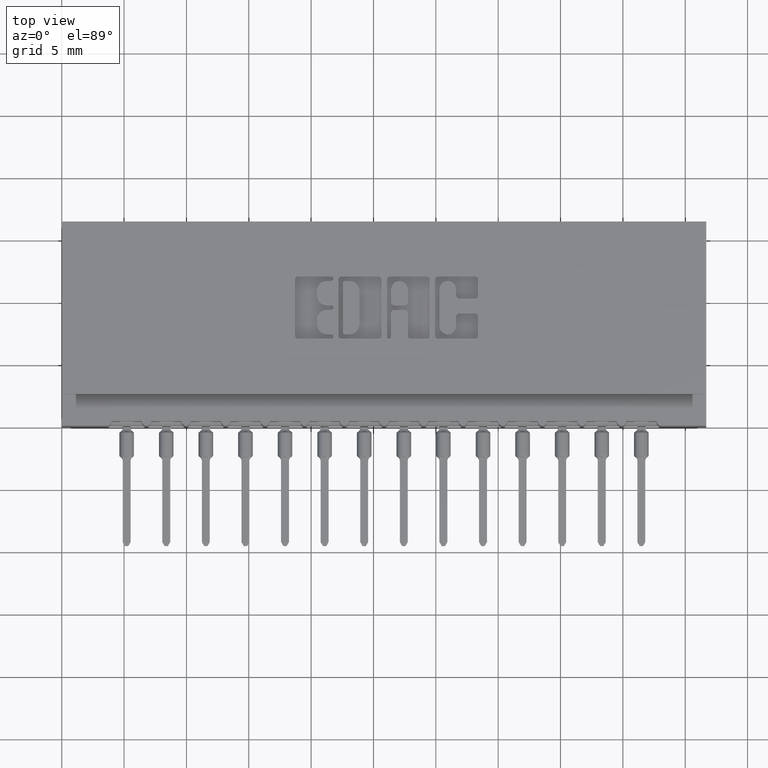
[diagram: clean part render]
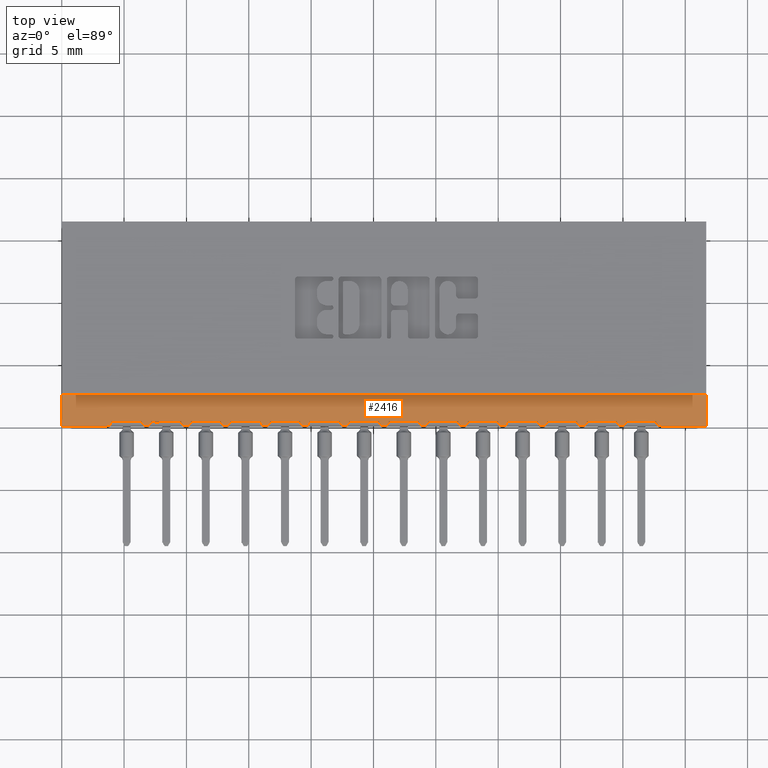
[diagram: same view with one face highlighted and labeled with its STEP entity id]
A machine part, top view. The second image highlights one B-rep face of the part: STEP entity #2416.
In plain terms, the highlighted planar face has unit normal (0, 0, -1).
Its self-contained STEP definition (entity closure, byte-faithful):
#82 = VERTEX_POINT ( 'NONE', #15864 ) ;
#85 = LINE ( 'NONE', #7974, #16011 ) ;
#154 = CARTESIAN_POINT ( 'NONE',  ( 2.035000000000000142, 0.0000000000000000000, -0.02500000000000000486 ) ) ;
#219 = VERTEX_POINT ( 'NONE', #16225 ) ;
#354 = ORIENTED_EDGE ( 'NONE', *, *, #18054, .T. ) ;
#429 = CARTESIAN_POINT ( 'NONE',  ( 1.808999999999999719, 0.01499999999999999424, -0.02500000000000003608 ) ) ;
#559 = DIRECTION ( 'NONE',  ( 1.000000000000000000, -0.0000000000000000000, -2.307304048702925122E-16 ) ) ;
#734 = CARTESIAN_POINT ( 'NONE',  ( 0.1424999999999997102, 0.0000000000000000000, -0.02500000000000000486 ) ) ;
#761 = DIRECTION ( 'NONE',  ( 1.000000000000000000, 0.0000000000000000000, 0.0000000000000000000 ) ) ;
#844 = EDGE_CURVE ( 'NONE', #20589, #3633, #22038, .T. ) ;
#1009 = CIRCLE ( 'NONE', #15615, 0.01499999999999997689 ) ;
#1082 = ORIENTED_EDGE ( 'NONE', *, *, #18582, .T. ) ;
#1389 = ORIENTED_EDGE ( 'NONE', *, *, #2520, .T. ) ;
#1536 = EDGE_CURVE ( 'NONE', #16922, #14521, #9509, .T. ) ;
#1668 = EDGE_CURVE ( 'NONE', #4812, #3667, #85, .T. ) ;
#1925 = CARTESIAN_POINT ( 'NONE',  ( 0.1839999999999996916, 0.01499999999999999424, -0.02500000000000003608 ) ) ;
#2029 = EDGE_CURVE ( 'NONE', #22804, #4812, #1009, .T. ) ;
#2153 = ORIENTED_EDGE ( 'NONE', *, *, #9712, .T. ) ;
#2223 = CARTESIAN_POINT ( 'NONE',  ( 2.035000000000000142, 0.0000000000000000000, -0.02500000000000000486 ) ) ;
#2237 = DIRECTION ( 'NONE',  ( -0.0000000000000000000, 0.0000000000000000000, 1.000000000000000000 ) ) ;
#2247 = VERTEX_POINT ( 'NONE', #14504 ) ;
#2270 = CARTESIAN_POINT ( 'NONE',  ( 0.1574999999999997236, 0.01499999999999997169, -0.02500000000000000486 ) ) ;
#2334 = AXIS2_PLACEMENT_3D ( 'NONE', #7101, #19962, #6251 ) ;
#2393 = VERTEX_POINT ( 'NONE', #7292 ) ;
#2416 = ADVANCED_FACE ( 'NONE', ( #5393 ), #20893, .F. ) ;
#2465 = EDGE_CURVE ( 'NONE', #21553, #13760, #10756, .T. ) ;
#2520 = EDGE_CURVE ( 'NONE', #2393, #20589, #13992, .T. ) ;
#2619 = CARTESIAN_POINT ( 'NONE',  ( 1.752499999999999503, 0.01499999999999997169, -0.02500000000000000486 ) ) ;
#2662 = EDGE_CURVE ( 'NONE', #10345, #11675, #9584, .T. ) ;
#2693 = ORIENTED_EDGE ( 'NONE', *, *, #13655, .T. ) ;
#2907 = VECTOR ( 'NONE', #3696, 39.37007874015748143 ) ;
#3059 = LINE ( 'NONE', #8644, #10998 ) ;
#3185 = CARTESIAN_POINT ( 'NONE',  ( 1.142499999999999627, 0.01499999999999997169, -0.02500000000000000486 ) ) ;
#3318 = LINE ( 'NONE', #22761, #22798 ) ;
#3439 = CARTESIAN_POINT ( 'NONE',  ( 1.308999999999999941, 0.01499999999999999424, -0.02500000000000003608 ) ) ;
#3507 = ORIENTED_EDGE ( 'NONE', *, *, #16495, .T. ) ;
#3562 = DIRECTION ( 'NONE',  ( 1.000000000000000000, 0.0000000000000000000, 0.0000000000000000000 ) ) ;
#3624 = DIRECTION ( 'NONE',  ( 1.000000000000000000, 0.0000000000000000000, 0.0000000000000000000 ) ) ;
#3633 = VERTEX_POINT ( 'NONE', #18994 ) ;
#3652 = VERTEX_POINT ( 'NONE', #20637 ) ;
#3667 = VERTEX_POINT ( 'NONE', #24189 ) ;
#3696 = DIRECTION ( 'NONE',  ( 1.000000000000000000, -0.0000000000000000000, -2.307304048702925122E-16 ) ) ;
#3707 = CARTESIAN_POINT ( 'NONE',  ( 0.9074999999999996403, 0.01499999999999997169, -0.02500000000000000486 ) ) ;
#3788 = VERTEX_POINT ( 'NONE', #7783 ) ;
#3892 = DIRECTION ( 'NONE',  ( 1.000000000000000000, 0.0000000000000000000, 0.0000000000000000000 ) ) ;
#3901 = AXIS2_PLACEMENT_3D ( 'NONE', #16809, #7029, #14769 ) ;
#3944 = AXIS2_PLACEMENT_3D ( 'NONE', #13559, #6190, #19540 ) ;
#4008 = CARTESIAN_POINT ( 'NONE',  ( 1.767499999999999627, 0.01499999999999997169, -0.02500000000000000486 ) ) ;
#4086 = VERTEX_POINT ( 'NONE', #10667 ) ;
#4199 = VECTOR ( 'NONE', #13746, 39.37007874015748143 ) ;
#4233 = CARTESIAN_POINT ( 'NONE',  ( 0.5589999999999997193, 0.01499999999999999424, -0.02500000000000003608 ) ) ;
#4393 = CIRCLE ( 'NONE', #6807, 0.01499999999999997689 ) ;
#4451 = DIRECTION ( 'NONE',  ( -0.0000000000000000000, 0.0000000000000000000, 1.000000000000000000 ) ) ;
#4659 = CARTESIAN_POINT ( 'NONE',  ( 1.392499999999999627, 0.01499999999999997169, -0.02500000000000000486 ) ) ;
#4782 = DIRECTION ( 'NONE',  ( -0.0000000000000000000, 0.0000000000000000000, 1.000000000000000000 ) ) ;
#4812 = VERTEX_POINT ( 'NONE', #20035 ) ;
#5075 = ORIENTED_EDGE ( 'NONE', *, *, #2662, .F. ) ;
#5145 = DIRECTION ( 'NONE',  ( -0.0000000000000000000, 0.0000000000000000000, 1.000000000000000000 ) ) ;
#5201 = EDGE_CURVE ( 'NONE', #14521, #10589, #9334, .T. ) ;
#5393 = FACE_OUTER_BOUND ( 'NONE', #9731, .T. ) ;
#5466 = DIRECTION ( 'NONE',  ( -0.0000000000000000000, 0.0000000000000000000, 1.000000000000000000 ) ) ;
#5558 = CARTESIAN_POINT ( 'NONE',  ( 1.407499999999999751, 0.01499999999999997169, -0.02500000000000000486 ) ) ;
#5787 = DIRECTION ( 'NONE',  ( -0.0000000000000000000, 0.0000000000000000000, 1.000000000000000000 ) ) ;
#5838 = CARTESIAN_POINT ( 'NONE',  ( 1.252499999999999503, 0.01499999999999997169, -0.02500000000000000486 ) ) ;
#6128 = DIRECTION ( 'NONE',  ( 1.000000000000000000, 0.0000000000000000000, 0.0000000000000000000 ) ) ;
#6129 = LINE ( 'NONE', #4233, #19892 ) ;
#6190 = DIRECTION ( 'NONE',  ( -0.0000000000000000000, 0.0000000000000000000, 1.000000000000000000 ) ) ;
#6251 = DIRECTION ( 'NONE',  ( 1.000000000000000000, 0.0000000000000000000, 0.0000000000000000000 ) ) ;
#6302 = CARTESIAN_POINT ( 'NONE',  ( 1.642499999999999849, 0.01499999999999997169, -0.02500000000000000486 ) ) ;
#6329 = ORIENTED_EDGE ( 'NONE', *, *, #8656, .T. ) ;
#6573 = ORIENTED_EDGE ( 'NONE', *, *, #21549, .T. ) ;
#6580 = CIRCLE ( 'NONE', #15530, 0.01499999999999997689 ) ;
#6594 = CARTESIAN_POINT ( 'NONE',  ( 0.2674999999999996825, 0.01499999999999997169, -0.02500000000000000486 ) ) ;
#6664 = AXIS2_PLACEMENT_3D ( 'NONE', #4659, #4782, #20269 ) ;
#6807 = AXIS2_PLACEMENT_3D ( 'NONE', #9203, #5145, #3624 ) ;
#6953 = VERTEX_POINT ( 'NONE', #5838 ) ;
#6976 = AXIS2_PLACEMENT_3D ( 'NONE', #3185, #12706, #20469 ) ;
#7029 = DIRECTION ( 'NONE',  ( 0.0000000000000000000, 0.0000000000000000000, -1.000000000000000000 ) ) ;
#7101 = CARTESIAN_POINT ( 'NONE',  ( 0.8924999999999997380, 0.01499999999999997169, -0.02500000000000000486 ) ) ;
#7292 = CARTESIAN_POINT ( 'NONE',  ( 1.657499999999999529, 0.01499999999999997169, -0.02500000000000000486 ) ) ;
#7346 = AXIS2_PLACEMENT_3D ( 'NONE', #21745, #18182, #761 ) ;
#7416 = CARTESIAN_POINT ( 'NONE',  ( 2.035000000000000142, 0.1000000000000000056, -0.02500000000000000486 ) ) ;
#7518 = CARTESIAN_POINT ( 'NONE',  ( 1.183999999999999719, 0.01499999999999999424, -0.02500000000000003608 ) ) ;
#7651 = VECTOR ( 'NONE', #18734, 39.37007874015748143 ) ;
#7783 = CARTESIAN_POINT ( 'NONE',  ( 0.2524999999999996692, 0.01499999999999997169, -0.02500000000000000486 ) ) ;
#7815 = ORIENTED_EDGE ( 'NONE', *, *, #1536, .T. ) ;
#7839 = ORIENTED_EDGE ( 'NONE', *, *, #19753, .F. ) ;
#7915 = CARTESIAN_POINT ( 'NONE',  ( 1.683999999999999497, 0.01499999999999999424, -0.02500000000000003608 ) ) ;
#7916 = DIRECTION ( 'NONE',  ( 1.000000000000000000, -0.0000000000000000000, -2.307304048702925122E-16 ) ) ;
#7974 = CARTESIAN_POINT ( 'NONE',  ( 1.058999999999999719, 0.01499999999999999424, -0.02500000000000003608 ) ) ;
#8018 = ORIENTED_EDGE ( 'NONE', *, *, #844, .T. ) ;
#8092 = DIRECTION ( 'NONE',  ( 1.000000000000000000, -0.0000000000000000000, -2.307304048702925122E-16 ) ) ;
#8202 = AXIS2_PLACEMENT_3D ( 'NONE', #20834, #5466, #3562 ) ;
#8388 = CIRCLE ( 'NONE', #3944, 0.01499999999999997689 ) ;
#8405 = EDGE_CURVE ( 'NONE', #219, #23742, #24803, .T. ) ;
#8503 = ORIENTED_EDGE ( 'NONE', *, *, #20492, .T. ) ;
#8644 = CARTESIAN_POINT ( 'NONE',  ( 0.8089999999999997193, 0.01499999999999999424, -0.02500000000000003608 ) ) ;
#8656 = EDGE_CURVE ( 'NONE', #10368, #6953, #9660, .T. ) ;
#8659 = VERTEX_POINT ( 'NONE', #3707 ) ;
#8760 = EDGE_CURVE ( 'NONE', #10345, #3788, #19332, .T. ) ;
#9021 = CARTESIAN_POINT ( 'NONE',  ( 0.3089999999999997193, 0.01499999999999999424, -0.02500000000000003608 ) ) ;
#9159 = DIRECTION ( 'NONE',  ( 1.000000000000000000, -0.0000000000000000000, -2.307304048702925122E-16 ) ) ;
#9203 = CARTESIAN_POINT ( 'NONE',  ( 0.5174999999999996270, 0.01499999999999997169, -0.02500000000000000486 ) ) ;
#9334 = CIRCLE ( 'NONE', #14578, 0.01499999999999997689 ) ;
#9509 = LINE ( 'NONE', #9021, #15598 ) ;
#9572 = DIRECTION ( 'NONE',  ( -0.0000000000000000000, 0.0000000000000000000, 1.000000000000000000 ) ) ;
#9584 = CIRCLE ( 'NONE', #23389, 0.01500000000000001159 ) ;
#9601 = CARTESIAN_POINT ( 'NONE',  ( 0.7674999999999996270, 0.01499999999999997169, -0.02500000000000000486 ) ) ;
#9604 = CARTESIAN_POINT ( 'NONE',  ( 1.017499999999999627, 0.01499999999999997169, -0.02500000000000000486 ) ) ;
#9647 = VECTOR ( 'NONE', #13618, 39.37007874015748143 ) ;
#9658 = EDGE_CURVE ( 'NONE', #3652, #12979, #3059, .T. ) ;
#9660 = LINE ( 'NONE', #7518, #14206 ) ;
#9712 = EDGE_CURVE ( 'NONE', #10589, #24220, #3318, .T. ) ;
#9731 = EDGE_LOOP ( 'NONE', ( #8018, #12416, #12687, #7839, #22678, #19904, #8503, #18889, #5075, #22622, #354, #7815, #22071, #2153, #1082, #18086, #15915, #18237, #15121, #14785, #3507, #2693, #18535, #17335, #6573, #6329, #18072, #21891, #21397, #17948, #19976, #23804, #13208, #1389 ) ) ;
#9906 = CARTESIAN_POINT ( 'NONE',  ( 0.3774999999999996692, 0.01499999999999997169, -0.02500000000000000486 ) ) ;
#9970 = DIRECTION ( 'NONE',  ( 1.000000000000000000, 0.0000000000000000000, 0.0000000000000000000 ) ) ;
#9973 = DIRECTION ( 'NONE',  ( 1.000000000000000000, 0.0000000000000000000, 0.0000000000000000000 ) ) ;
#10063 = VECTOR ( 'NONE', #20098, 39.37007874015748143 ) ;
#10204 = DIRECTION ( 'NONE',  ( 1.000000000000000000, -0.0000000000000000000, -2.307304048702925122E-16 ) ) ;
#10331 = EDGE_CURVE ( 'NONE', #19772, #22679, #12655, .T. ) ;
#10345 = VERTEX_POINT ( 'NONE', #2270 ) ;
#10358 = AXIS2_PLACEMENT_3D ( 'NONE', #19481, #9572, #6128 ) ;
#10368 = VERTEX_POINT ( 'NONE', #21453 ) ;
#10423 = CARTESIAN_POINT ( 'NONE',  ( 1.558999999999999719, 0.01499999999999999424, -0.02500000000000003608 ) ) ;
#10589 = VERTEX_POINT ( 'NONE', #12405 ) ;
#10667 = CARTESIAN_POINT ( 'NONE',  ( 0.7524999999999997247, 0.01499999999999997169, -0.02500000000000000486 ) ) ;
#10753 = VECTOR ( 'NONE', #559, 39.37007874015748143 ) ;
#10756 = CIRCLE ( 'NONE', #10358, 0.01499999999999997689 ) ;
#10836 = EDGE_CURVE ( 'NONE', #20187, #2393, #6580, .T. ) ;
#10921 = CARTESIAN_POINT ( 'NONE',  ( 1.502499999999999503, 0.01499999999999997169, -0.02500000000000000486 ) ) ;
#10942 = LINE ( 'NONE', #20884, #12187 ) ;
#10998 = VECTOR ( 'NONE', #22362, 39.37007874015748143 ) ;
#11212 = LINE ( 'NONE', #7416, #12048 ) ;
#11649 = DIRECTION ( 'NONE',  ( -0.0000000000000000000, -1.000000000000000000, -0.0000000000000000000 ) ) ;
#11675 = VERTEX_POINT ( 'NONE', #734 ) ;
#12048 = VECTOR ( 'NONE', #20499, 39.37007874015748143 ) ;
#12187 = VECTOR ( 'NONE', #24699, 39.37007874015748143 ) ;
#12338 = LINE ( 'NONE', #10423, #10063 ) ;
#12405 = CARTESIAN_POINT ( 'NONE',  ( 0.4074999999999996958, 0.01499999999999997169, -0.02500000000000000486 ) ) ;
#12416 = ORIENTED_EDGE ( 'NONE', *, *, #22218, .T. ) ;
#12456 = AXIS2_PLACEMENT_3D ( 'NONE', #9601, #17349, #3892 ) ;
#12655 = CIRCLE ( 'NONE', #8202, 0.01499999999999997689 ) ;
#12687 = ORIENTED_EDGE ( 'NONE', *, *, #8405, .T. ) ;
#12706 = DIRECTION ( 'NONE',  ( -0.0000000000000000000, 0.0000000000000000000, 1.000000000000000000 ) ) ;
#12755 = VERTEX_POINT ( 'NONE', #19365 ) ;
#12874 = EDGE_CURVE ( 'NONE', #82, #19772, #6129, .T. ) ;
#12979 = VERTEX_POINT ( 'NONE', #16775 ) ;
#13090 = VECTOR ( 'NONE', #10204, 39.37007874015748143 ) ;
#13208 = ORIENTED_EDGE ( 'NONE', *, *, #10836, .T. ) ;
#13271 = CIRCLE ( 'NONE', #12456, 0.01499999999999997689 ) ;
#13313 = LINE ( 'NONE', #17630, #16657 ) ;
#13529 = AXIS2_PLACEMENT_3D ( 'NONE', #4008, #5787, #19633 ) ;
#13559 = CARTESIAN_POINT ( 'NONE',  ( 1.267499999999999627, 0.01499999999999997169, -0.02500000000000000486 ) ) ;
#13618 = DIRECTION ( 'NONE',  ( -0.0000000000000000000, -1.000000000000000000, -0.0000000000000000000 ) ) ;
#13655 = EDGE_CURVE ( 'NONE', #8659, #22804, #14146, .T. ) ;
#13746 = DIRECTION ( 'NONE',  ( -1.000000000000000000, -0.0000000000000000000, -0.0000000000000000000 ) ) ;
#13751 = AXIS2_PLACEMENT_3D ( 'NONE', #6594, #4451, #16120 ) ;
#13760 = VERTEX_POINT ( 'NONE', #24073 ) ;
#13992 = LINE ( 'NONE', #7915, #18905 ) ;
#14146 = LINE ( 'NONE', #18227, #10753 ) ;
#14206 = VECTOR ( 'NONE', #17036, 39.37007874015748143 ) ;
#14504 = CARTESIAN_POINT ( 'NONE',  ( 2.035000000000000142, 0.0000000000000000000, -0.02500000000000000486 ) ) ;
#14521 = VERTEX_POINT ( 'NONE', #9906 ) ;
#14578 = AXIS2_PLACEMENT_3D ( 'NONE', #19645, #2237, #9970 ) ;
#14655 = VERTEX_POINT ( 'NONE', #23242 ) ;
#14769 = DIRECTION ( 'NONE',  ( -1.000000000000000000, 0.0000000000000000000, -0.0000000000000000000 ) ) ;
#14785 = ORIENTED_EDGE ( 'NONE', *, *, #9658, .T. ) ;
#15121 = ORIENTED_EDGE ( 'NONE', *, *, #15989, .T. ) ;
#15166 = LINE ( 'NONE', #20633, #7651 ) ;
#15370 = CARTESIAN_POINT ( 'NONE',  ( 1.282499999999999751, 0.01499999999999997169, -0.02500000000000000486 ) ) ;
#15403 = DIRECTION ( 'NONE',  ( 1.000000000000000000, -0.0000000000000000000, -2.307304048702925122E-16 ) ) ;
#15530 = AXIS2_PLACEMENT_3D ( 'NONE', #6302, #21790, #9973 ) ;
#15533 = EDGE_CURVE ( 'NONE', #6953, #25160, #8388, .T. ) ;
#15598 = VECTOR ( 'NONE', #24539, 39.37007874015748143 ) ;
#15615 = AXIS2_PLACEMENT_3D ( 'NONE', #9604, #17352, #25117 ) ;
#15680 = LINE ( 'NONE', #2223, #24790 ) ;
#15826 = CARTESIAN_POINT ( 'NONE',  ( 1.002499999999999725, 0.01499999999999997169, -0.02500000000000000486 ) ) ;
#15864 = CARTESIAN_POINT ( 'NONE',  ( 0.5324999999999997513, 0.01499999999999997169, -0.02500000000000000486 ) ) ;
#15915 = ORIENTED_EDGE ( 'NONE', *, *, #10331, .T. ) ;
#15989 = EDGE_CURVE ( 'NONE', #4086, #3652, #13271, .T. ) ;
#16011 = VECTOR ( 'NONE', #8092, 39.37007874015748143 ) ;
#16120 = DIRECTION ( 'NONE',  ( 1.000000000000000000, 0.0000000000000000000, 0.0000000000000000000 ) ) ;
#16124 = EDGE_CURVE ( 'NONE', #14655, #16925, #11212, .T. ) ;
#16177 = LINE ( 'NONE', #429, #13090 ) ;
#16225 = CARTESIAN_POINT ( 'NONE',  ( 1.877499999999999503, 0.01499999999999997169, -0.02500000000000000486 ) ) ;
#16346 = EDGE_CURVE ( 'NONE', #14655, #2247, #25079, .T. ) ;
#16495 = EDGE_CURVE ( 'NONE', #12979, #8659, #23460, .T. ) ;
#16501 = CARTESIAN_POINT ( 'NONE',  ( 1.377499999999999725, 0.01499999999999997169, -0.02500000000000000486 ) ) ;
#16513 = DIRECTION ( 'NONE',  ( 0.0000000000000000000, -0.0000000000000000000, -1.000000000000000000 ) ) ;
#16657 = VECTOR ( 'NONE', #11649, 39.37007874015748143 ) ;
#16775 = CARTESIAN_POINT ( 'NONE',  ( 0.8774999999999997247, 0.01499999999999997169, -0.02500000000000000486 ) ) ;
#16809 = CARTESIAN_POINT ( 'NONE',  ( 2.035000000000000142, 0.0000000000000000000, -0.02500000000000000486 ) ) ;
#16922 = VERTEX_POINT ( 'NONE', #18637 ) ;
#16925 = VERTEX_POINT ( 'NONE', #22052 ) ;
#17036 = DIRECTION ( 'NONE',  ( 1.000000000000000000, -0.0000000000000000000, -2.307304048702925122E-16 ) ) ;
#17335 = ORIENTED_EDGE ( 'NONE', *, *, #1668, .T. ) ;
#17343 = CARTESIAN_POINT ( 'NONE',  ( 0.5024999999999996136, 0.01499999999999997169, -0.02500000000000000486 ) ) ;
#17349 = DIRECTION ( 'NONE',  ( -0.0000000000000000000, 0.0000000000000000000, 1.000000000000000000 ) ) ;
#17352 = DIRECTION ( 'NONE',  ( -0.0000000000000000000, 0.0000000000000000000, 1.000000000000000000 ) ) ;
#17473 = EDGE_CURVE ( 'NONE', #20849, #21553, #15166, .T. ) ;
#17575 = LINE ( 'NONE', #154, #4199 ) ;
#17630 = CARTESIAN_POINT ( 'NONE',  ( 0.0000000000000000000, 0.0000000000000000000, -0.02500000000000000486 ) ) ;
#17684 = EDGE_CURVE ( 'NONE', #13760, #20187, #12338, .T. ) ;
#17802 = CIRCLE ( 'NONE', #13751, 0.01500000000000001159 ) ;
#17934 = DIRECTION ( 'NONE',  ( 1.000000000000000000, 0.0000000000000000000, 0.0000000000000000000 ) ) ;
#17948 = ORIENTED_EDGE ( 'NONE', *, *, #17473, .T. ) ;
#18054 = EDGE_CURVE ( 'NONE', #3788, #16922, #17802, .T. ) ;
#18072 = ORIENTED_EDGE ( 'NONE', *, *, #15533, .T. ) ;
#18086 = ORIENTED_EDGE ( 'NONE', *, *, #12874, .T. ) ;
#18182 = DIRECTION ( 'NONE',  ( -0.0000000000000000000, 0.0000000000000000000, 1.000000000000000000 ) ) ;
#18195 = CARTESIAN_POINT ( 'NONE',  ( 0.6574999999999997513, 0.01499999999999997169, -0.02500000000000000486 ) ) ;
#18227 = CARTESIAN_POINT ( 'NONE',  ( 0.9339999999999996083, 0.01499999999999999424, -0.02500000000000003608 ) ) ;
#18237 = ORIENTED_EDGE ( 'NONE', *, *, #20047, .T. ) ;
#18535 = ORIENTED_EDGE ( 'NONE', *, *, #2029, .T. ) ;
#18582 = EDGE_CURVE ( 'NONE', #24220, #82, #4393, .T. ) ;
#18637 = CARTESIAN_POINT ( 'NONE',  ( 0.2824999999999996958, 0.01499999999999997169, -0.02500000000000000486 ) ) ;
#18734 = DIRECTION ( 'NONE',  ( 1.000000000000000000, -0.0000000000000000000, -2.307304048702925122E-16 ) ) ;
#18889 = ORIENTED_EDGE ( 'NONE', *, *, #22611, .F. ) ;
#18905 = VECTOR ( 'NONE', #15403, 39.37007874015748143 ) ;
#18994 = CARTESIAN_POINT ( 'NONE',  ( 1.782499999999999529, 0.01499999999999997169, -0.02500000000000000486 ) ) ;
#19332 = LINE ( 'NONE', #1925, #21940 ) ;
#19365 = CARTESIAN_POINT ( 'NONE',  ( 0.0000000000000000000, 0.0000000000000000000, -0.02500000000000000486 ) ) ;
#19481 = CARTESIAN_POINT ( 'NONE',  ( 1.517499999999999849, 0.01499999999999997169, -0.02500000000000000486 ) ) ;
#19520 = EDGE_CURVE ( 'NONE', #25002, #20849, #22502, .T. ) ;
#19540 = DIRECTION ( 'NONE',  ( 1.000000000000000000, 0.0000000000000000000, 0.0000000000000000000 ) ) ;
#19633 = DIRECTION ( 'NONE',  ( 1.000000000000000000, 0.0000000000000000000, 0.0000000000000000000 ) ) ;
#19645 = CARTESIAN_POINT ( 'NONE',  ( 0.3924999999999996825, 0.01499999999999997169, -0.02500000000000000486 ) ) ;
#19753 = EDGE_CURVE ( 'NONE', #2247, #23742, #15680, .T. ) ;
#19758 = CARTESIAN_POINT ( 'NONE',  ( 0.6274999999999996136, 0.01499999999999997169, -0.02500000000000000486 ) ) ;
#19772 = VERTEX_POINT ( 'NONE', #19758 ) ;
#19872 = DIRECTION ( 'NONE',  ( -1.000000000000000000, -0.0000000000000000000, -0.0000000000000000000 ) ) ;
#19892 = VECTOR ( 'NONE', #7916, 39.37007874015748143 ) ;
#19904 = ORIENTED_EDGE ( 'NONE', *, *, #16124, .T. ) ;
#19962 = DIRECTION ( 'NONE',  ( -0.0000000000000000000, 0.0000000000000000000, 1.000000000000000000 ) ) ;
#19976 = ORIENTED_EDGE ( 'NONE', *, *, #2465, .T. ) ;
#20035 = CARTESIAN_POINT ( 'NONE',  ( 1.032499999999999751, 0.01499999999999997169, -0.02500000000000000486 ) ) ;
#20047 = EDGE_CURVE ( 'NONE', #22679, #4086, #10942, .T. ) ;
#20094 = CARTESIAN_POINT ( 'NONE',  ( 0.1424999999999997102, 0.01499999999999997169, -0.02500000000000000486 ) ) ;
#20098 = DIRECTION ( 'NONE',  ( 1.000000000000000000, -0.0000000000000000000, -2.307304048702925122E-16 ) ) ;
#20187 = VERTEX_POINT ( 'NONE', #23410 ) ;
#20269 = DIRECTION ( 'NONE',  ( 1.000000000000000000, 0.0000000000000000000, 0.0000000000000000000 ) ) ;
#20469 = DIRECTION ( 'NONE',  ( 1.000000000000000000, 0.0000000000000000000, 0.0000000000000000000 ) ) ;
#20492 = EDGE_CURVE ( 'NONE', #16925, #12755, #13313, .T. ) ;
#20499 = DIRECTION ( 'NONE',  ( -1.000000000000000000, -0.0000000000000000000, -0.0000000000000000000 ) ) ;
#20589 = VERTEX_POINT ( 'NONE', #2619 ) ;
#20633 = CARTESIAN_POINT ( 'NONE',  ( 1.433999999999999719, 0.01499999999999999424, -0.02500000000000003608 ) ) ;
#20637 = CARTESIAN_POINT ( 'NONE',  ( 0.7824999999999997513, 0.01499999999999997169, -0.02500000000000000486 ) ) ;
#20834 = CARTESIAN_POINT ( 'NONE',  ( 0.6424999999999996270, 0.01499999999999997169, -0.02500000000000000486 ) ) ;
#20844 = LINE ( 'NONE', #3439, #2907 ) ;
#20849 = VERTEX_POINT ( 'NONE', #5558 ) ;
#20884 = CARTESIAN_POINT ( 'NONE',  ( 0.6839999999999997193, 0.01499999999999999424, -0.02500000000000003608 ) ) ;
#20893 = PLANE ( 'NONE',  #3901 ) ;
#21397 = ORIENTED_EDGE ( 'NONE', *, *, #19520, .T. ) ;
#21453 = CARTESIAN_POINT ( 'NONE',  ( 1.157499999999999751, 0.01499999999999997169, -0.02500000000000000486 ) ) ;
#21549 = EDGE_CURVE ( 'NONE', #3667, #10368, #24024, .T. ) ;
#21553 = VERTEX_POINT ( 'NONE', #10921 ) ;
#21745 = CARTESIAN_POINT ( 'NONE',  ( 1.892499999999999627, 0.01499999999999997169, -0.02500000000000000486 ) ) ;
#21790 = DIRECTION ( 'NONE',  ( -0.0000000000000000000, 0.0000000000000000000, 1.000000000000000000 ) ) ;
#21891 = ORIENTED_EDGE ( 'NONE', *, *, #23344, .T. ) ;
#21940 = VECTOR ( 'NONE', #9159, 39.37007874015748143 ) ;
#22038 = CIRCLE ( 'NONE', #13529, 0.01499999999999997689 ) ;
#22052 = CARTESIAN_POINT ( 'NONE',  ( 0.0000000000000000000, 0.1000000000000000056, -0.02500000000000000486 ) ) ;
#22071 = ORIENTED_EDGE ( 'NONE', *, *, #5201, .T. ) ;
#22218 = EDGE_CURVE ( 'NONE', #3633, #219, #16177, .T. ) ;
#22362 = DIRECTION ( 'NONE',  ( 1.000000000000000000, -0.0000000000000000000, -2.307304048702925122E-16 ) ) ;
#22502 = CIRCLE ( 'NONE', #6664, 0.01499999999999997689 ) ;
#22611 = EDGE_CURVE ( 'NONE', #11675, #12755, #17575, .T. ) ;
#22622 = ORIENTED_EDGE ( 'NONE', *, *, #8760, .T. ) ;
#22678 = ORIENTED_EDGE ( 'NONE', *, *, #16346, .F. ) ;
#22679 = VERTEX_POINT ( 'NONE', #18195 ) ;
#22761 = CARTESIAN_POINT ( 'NONE',  ( 0.4339999999999996638, 0.01499999999999999424, -0.02500000000000003608 ) ) ;
#22798 = VECTOR ( 'NONE', #24288, 39.37007874015748143 ) ;
#22804 = VERTEX_POINT ( 'NONE', #15826 ) ;
#22975 = CARTESIAN_POINT ( 'NONE',  ( 1.892499999999999627, 0.0000000000000000000, -0.02500000000000000486 ) ) ;
#23242 = CARTESIAN_POINT ( 'NONE',  ( 2.035000000000000142, 0.1000000000000000056, -0.02500000000000000486 ) ) ;
#23344 = EDGE_CURVE ( 'NONE', #25160, #25002, #20844, .T. ) ;
#23389 = AXIS2_PLACEMENT_3D ( 'NONE', #20094, #16513, #17934 ) ;
#23410 = CARTESIAN_POINT ( 'NONE',  ( 1.627499999999999503, 0.01499999999999997169, -0.02500000000000000486 ) ) ;
#23460 = CIRCLE ( 'NONE', #2334, 0.01499999999999997689 ) ;
#23742 = VERTEX_POINT ( 'NONE', #22975 ) ;
#23804 = ORIENTED_EDGE ( 'NONE', *, *, #17684, .T. ) ;
#24024 = CIRCLE ( 'NONE', #6976, 0.01499999999999997689 ) ;
#24073 = CARTESIAN_POINT ( 'NONE',  ( 1.532499999999999529, 0.01499999999999997169, -0.02500000000000000486 ) ) ;
#24189 = CARTESIAN_POINT ( 'NONE',  ( 1.127499999999999725, 0.01499999999999997169, -0.02500000000000000486 ) ) ;
#24220 = VERTEX_POINT ( 'NONE', #17343 ) ;
#24288 = DIRECTION ( 'NONE',  ( 1.000000000000000000, -0.0000000000000000000, -2.307304048702925122E-16 ) ) ;
#24539 = DIRECTION ( 'NONE',  ( 1.000000000000000000, -0.0000000000000000000, -2.307304048702925122E-16 ) ) ;
#24699 = DIRECTION ( 'NONE',  ( 1.000000000000000000, -0.0000000000000000000, -2.307304048702925122E-16 ) ) ;
#24790 = VECTOR ( 'NONE', #19872, 39.37007874015748143 ) ;
#24803 = CIRCLE ( 'NONE', #7346, 0.01499999999999997689 ) ;
#24958 = CARTESIAN_POINT ( 'NONE',  ( 2.035000000000000142, 0.0000000000000000000, -0.02500000000000000486 ) ) ;
#25002 = VERTEX_POINT ( 'NONE', #16501 ) ;
#25079 = LINE ( 'NONE', #24958, #9647 ) ;
#25117 = DIRECTION ( 'NONE',  ( 1.000000000000000000, 0.0000000000000000000, 0.0000000000000000000 ) ) ;
#25160 = VERTEX_POINT ( 'NONE', #15370 ) ;